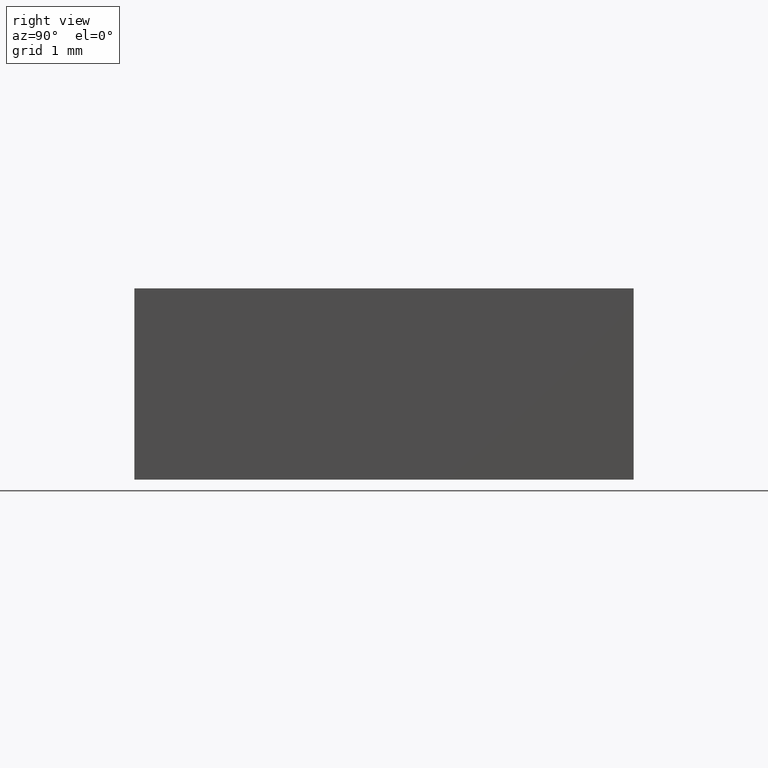
[diagram: clean part render]
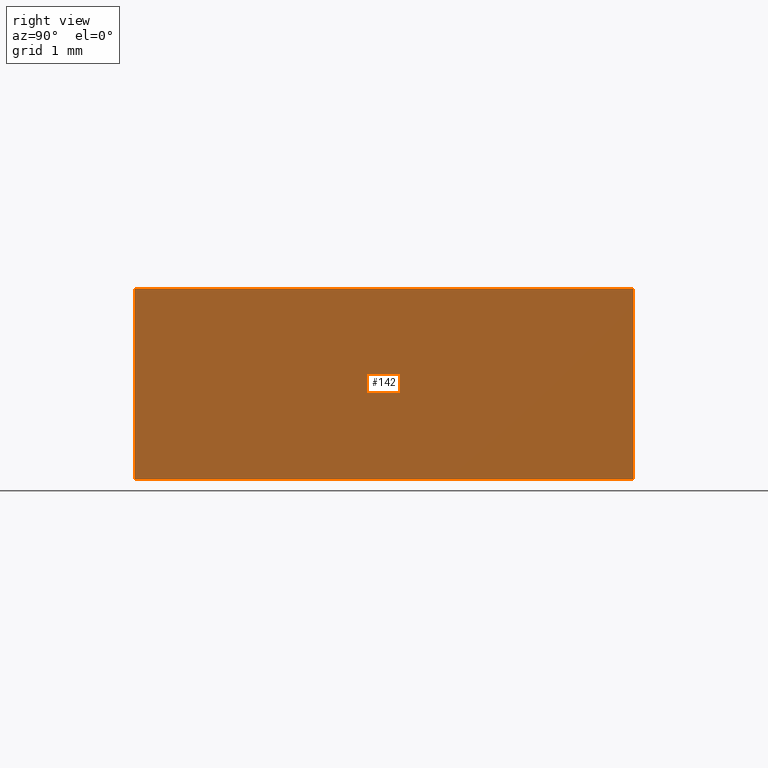
[diagram: same view with one face highlighted and labeled with its STEP entity id]
A machine part, right view. The second image highlights one B-rep face of the part: STEP entity #142.
In plain terms, the highlighted planar face has unit normal (-1, 0, 0).
Its self-contained STEP definition (entity closure, byte-faithful):
#4 = ORIENTED_EDGE ( 'NONE', *, *, #8, .T. ) ;
#5 = CARTESIAN_POINT ( 'NONE',  ( 23.24958715517701800, 9.312648366905317900, 0.0000000000000000000 ) ) ;
#7 = PLANE ( 'NONE',  #191 ) ;
#8 = EDGE_CURVE ( 'NONE', #40, #135, #56, .T. ) ;
#9 = VERTEX_POINT ( 'NONE', #118 ) ;
#13 = LINE ( 'NONE', #171, #55 ) ;
#22 = CARTESIAN_POINT ( 'NONE',  ( 23.24958715517702100, 15.31264836690531800, 0.0000000000000000000 ) ) ;
#24 = VECTOR ( 'NONE', #34, 1000.000000000000000 ) ;
#34 = DIRECTION ( 'NONE',  ( 5.782411586589356700E-016, 1.000000000000000000, -0.0000000000000000000 ) ) ;
#35 = EDGE_CURVE ( 'NONE', #9, #180, #138, .T. ) ;
#40 = VERTEX_POINT ( 'NONE', #59 ) ;
#42 = CARTESIAN_POINT ( 'NONE',  ( 23.24958715517702100, 15.31264836690531800, 2.299999999999999800 ) ) ;
#43 = CARTESIAN_POINT ( 'NONE',  ( 23.24958715517701800, 9.312648366905317900, 2.299999999999999800 ) ) ;
#51 = DIRECTION ( 'NONE',  ( -1.000000000000000000, 5.782411586589356700E-016, 0.0000000000000000000 ) ) ;
#55 = VECTOR ( 'NONE', #125, 1000.000000000000000 ) ;
#56 = LINE ( 'NONE', #43, #93 ) ;
#59 = CARTESIAN_POINT ( 'NONE',  ( 23.24958715517701800, 9.312648366905317900, 2.299999999999999800 ) ) ;
#68 = EDGE_CURVE ( 'NONE', #135, #180, #83, .T. ) ;
#76 = DIRECTION ( 'NONE',  ( -0.0000000000000000000, -0.0000000000000000000, -1.000000000000000000 ) ) ;
#79 = CARTESIAN_POINT ( 'NONE',  ( 23.24958715517702100, 15.31264836690531800, 2.299999999999999800 ) ) ;
#80 = ORIENTED_EDGE ( 'NONE', *, *, #68, .T. ) ;
#82 = VECTOR ( 'NONE', #76, 1000.000000000000000 ) ;
#83 = LINE ( 'NONE', #124, #24 ) ;
#92 = DIRECTION ( 'NONE',  ( -0.0000000000000000000, -0.0000000000000000000, -1.000000000000000000 ) ) ;
#93 = VECTOR ( 'NONE', #92, 1000.000000000000000 ) ;
#95 = EDGE_CURVE ( 'NONE', #40, #9, #13, .T. ) ;
#112 = ORIENTED_EDGE ( 'NONE', *, *, #35, .F. ) ;
#118 = CARTESIAN_POINT ( 'NONE',  ( 23.24958715517702100, 15.31264836690531800, 2.299999999999999800 ) ) ;
#124 = CARTESIAN_POINT ( 'NONE',  ( 23.24958715517702100, 15.31264836690531800, 0.0000000000000000000 ) ) ;
#125 = DIRECTION ( 'NONE',  ( 5.782411586589356700E-016, 1.000000000000000000, -0.0000000000000000000 ) ) ;
#135 = VERTEX_POINT ( 'NONE', #5 ) ;
#138 = LINE ( 'NONE', #42, #82 ) ;
#142 = ADVANCED_FACE ( 'NONE', ( #145 ), #7, .F. ) ;
#145 = FACE_OUTER_BOUND ( 'NONE', #198, .T. ) ;
#166 = ORIENTED_EDGE ( 'NONE', *, *, #95, .F. ) ;
#171 = CARTESIAN_POINT ( 'NONE',  ( 23.24958715517702100, 15.31264836690531800, 2.299999999999999800 ) ) ;
#180 = VERTEX_POINT ( 'NONE', #22 ) ;
#184 = DIRECTION ( 'NONE',  ( -5.782411586589356700E-016, -1.000000000000000000, 0.0000000000000000000 ) ) ;
#191 = AXIS2_PLACEMENT_3D ( 'NONE', #79, #51, #184 ) ;
#198 = EDGE_LOOP ( 'NONE', ( #80, #112, #166, #4 ) ) ;